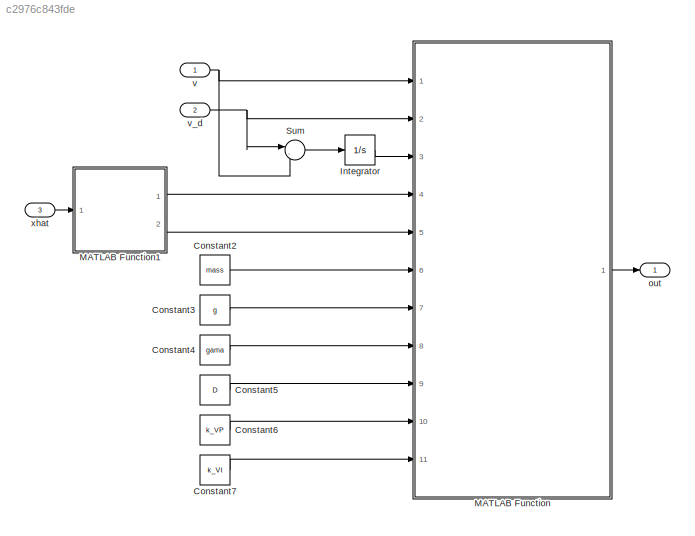
MODEL slx_c2976c843fde
KIND model
CONFIG AbsTol = auto
CONFIG EnableMultiTasking = off
CONFIG FixedStep = auto
CONFIG MaxStep = auto
CONFIG MinStep = auto
CONFIG RelTol = 1e-3
CONFIG SampleTimeConstraint = Unconstrained
CONFIG Solver = VariableStepAuto
CONFIG SolverName = VariableStepAuto
CONFIG StartTime = 0.0
CONFIG StopTime = 10.0
BLOCK [Constant] Constant2
  Value = mass
BLOCK [Constant] Constant3
  Value = g
BLOCK [Constant] Constant4
  Value = gama
BLOCK [Constant] Constant5
  Value = D
BLOCK [Constant] Constant6
  Value = k_VP
BLOCK [Constant] Constant7
  Value = k_VI
BLOCK [Integrator] Integrator
  Ports = [1, 1]
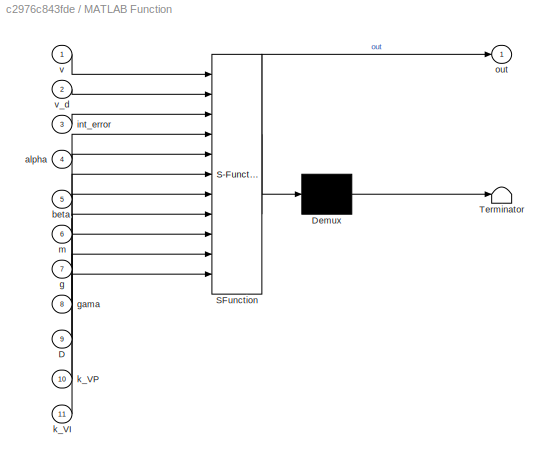
BLOCK [SubSystem] MATLAB Function
  ErrorFcn = Stateflow.Translate.translate
  PermitHierarchicalResolution = ExplicitOnly
  Ports = [11, 1]
  RequestExecContextInheritance = off
  SFBlockType = MATLAB Function
  TreatAsAtomicUnit = on
BLOCK [Demux] MATLAB Function/ Demux 
  Outputs = 1
  Ports = [1, 1]
BLOCK [S-Function] MATLAB Function/ SFunction 
  EnableBusSupport = on
  FunctionName = sf_sfun
  PortCounts = [11 2]
  Ports = [11, 2]
  SFcnIsStateOwnerBlock = off
  SFunctionDeploymentMode = off
  Tag = Stateflow S-Function airspeedController 2
BLOCK [Terminator] MATLAB Function/ Terminator 
BLOCK [Inport] MATLAB Function/D
  IconDisplay = Port number
  Port = 9
BLOCK [Inport] MATLAB Function/alpha
  IconDisplay = Port number
  Port = 4
BLOCK [Inport] MATLAB Function/beta
  IconDisplay = Port number
  Port = 5
BLOCK [Inport] MATLAB Function/g
  IconDisplay = Port number
  Port = 7
BLOCK [Inport] MATLAB Function/gama
  IconDisplay = Port number
  Port = 8
BLOCK [Inport] MATLAB Function/int_error
  IconDisplay = Port number
  Port = 3
BLOCK [Inport] MATLAB Function/k_VI
  IconDisplay = Port number
  Port = 11
BLOCK [Inport] MATLAB Function/k_VP
  IconDisplay = Port number
  Port = 10
BLOCK [Inport] MATLAB Function/m
  IconDisplay = Port number
  Port = 6
BLOCK [Outport] MATLAB Function/out
  IconDisplay = Port number
BLOCK [Inport] MATLAB Function/v
  IconDisplay = Port number
BLOCK [Inport] MATLAB Function/v_d
  IconDisplay = Port number
  Port = 2
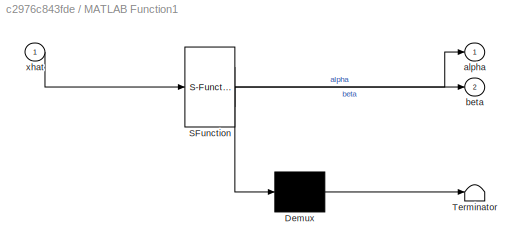
BLOCK [SubSystem] MATLAB Function1
  ErrorFcn = Stateflow.Translate.translate
  PermitHierarchicalResolution = ExplicitOnly
  Ports = [1, 2]
  RequestExecContextInheritance = off
  SFBlockType = MATLAB Function
  TreatAsAtomicUnit = on
BLOCK [Demux] MATLAB Function1/ Demux 
  Outputs = 1
  Ports = [1, 1]
BLOCK [S-Function] MATLAB Function1/ SFunction 
  EnableBusSupport = on
  FunctionName = sf_sfun
  PortCounts = [1 3]
  Ports = [1, 3]
  SFcnIsStateOwnerBlock = off
  SFunctionDeploymentMode = off
  Tag = Stateflow S-Function airspeedController 1
BLOCK [Terminator] MATLAB Function1/ Terminator 
BLOCK [Outport] MATLAB Function1/alpha
  IconDisplay = Port number
BLOCK [Outport] MATLAB Function1/beta
  IconDisplay = Port number
  Port = 2
BLOCK [Inport] MATLAB Function1/xhat
  IconDisplay = Port number
BLOCK [Sum] Sum
  IconShape = round
  InputSameDT = off
  Inputs = |-+
  OutDataTypeStr = Inherit: Inherit via internal rule
  Ports = [2, 1]
  SaturateOnIntegerOverflow = off
BLOCK [Outport] out 
  IconDisplay = Port number
BLOCK [Inport] v 
  IconDisplay = Port number
BLOCK [Inport] v_d
  IconDisplay = Port number
  Port = 2
BLOCK [Inport] xhat
  IconDisplay = Port number
  Port = 3
LINE Constant2:1 -> MATLAB Function:6
LINE Constant3:1 -> MATLAB Function:7
LINE Constant4:1 -> MATLAB Function:8
LINE Constant5:1 -> MATLAB Function:9
LINE Constant6:1 -> MATLAB Function:10
LINE Constant7:1 -> MATLAB Function:11
LINE Integrator:1 -> MATLAB Function:3
LINE MATLAB Function1:1 -> MATLAB Function:4
LINE MATLAB Function1:2 -> MATLAB Function:5
LINE MATLAB Function:1 -> out :1
LINE Sum:1 -> Integrator:1
NET v :1 -> MATLAB Function:1, Sum:2
NET v_d:1 -> MATLAB Function:2, Sum:1
LINE xhat:1 -> MATLAB Function1:1
note: NET lines group one-source signal fan-out (src -> all destinations, sorted); 1:1 wires keep LINE
CHART MATLAB Function1 states=1 transitions=1
  STATE_LABEL 'eML_blk_kernel()'
  STATE_LABEL 'SCRIPT:\nfunction [alpha,beta] = getData(xhat)\n    alpha = xhat(5);\n    beta = xhat(6);\nend\n'
CHART MATLAB Function states=1 transitions=1
  STATE_LABEL 'eML_blk_kernel()'
  STATE_LABEL 'SCRIPT:\nfunction out = airspeedController(v,v_d,int_error,alpha,beta,m,g,gama,D,k_VP,k_VI)\n% Equation 47 [1]\n\nF_T = [(D + mass*g*sin(gama)/(cos(beta)*cos(alpha))] + ...\n      [(k_VP*(v-v_d) + k_VI*int_error)/(cos(beta)*cos(alpha))];\n\nend\n\n% [1] Serra, Pedro & Cunha, Rita & Hamel, T. & Silvestre, Carlos & Le Bras, Florent. (2015). Nonlinear Image-Based Visual Servo Controller for the Flare Maneuver...<+134ch>'
